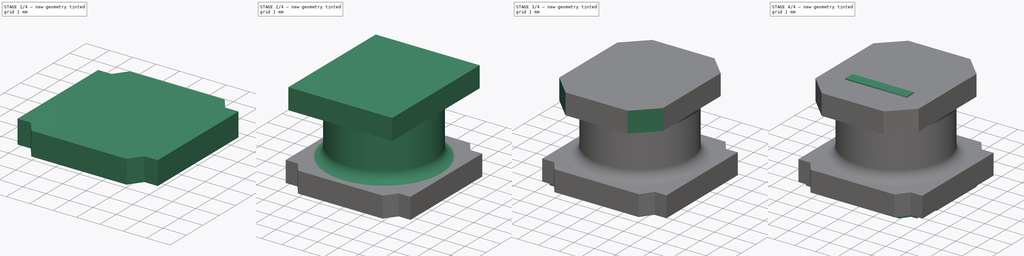
[diagram: build sequence overview — one tinted view per stage of 4, left to right]
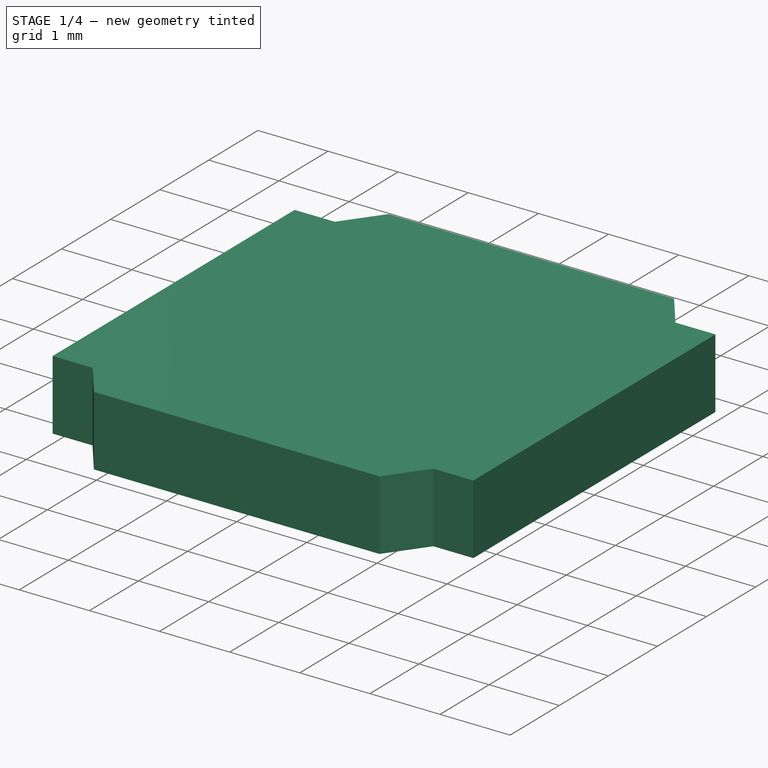
[diagram: stage 1 of 4 — iso view after this stage's code; geometry added in this stage tinted green]
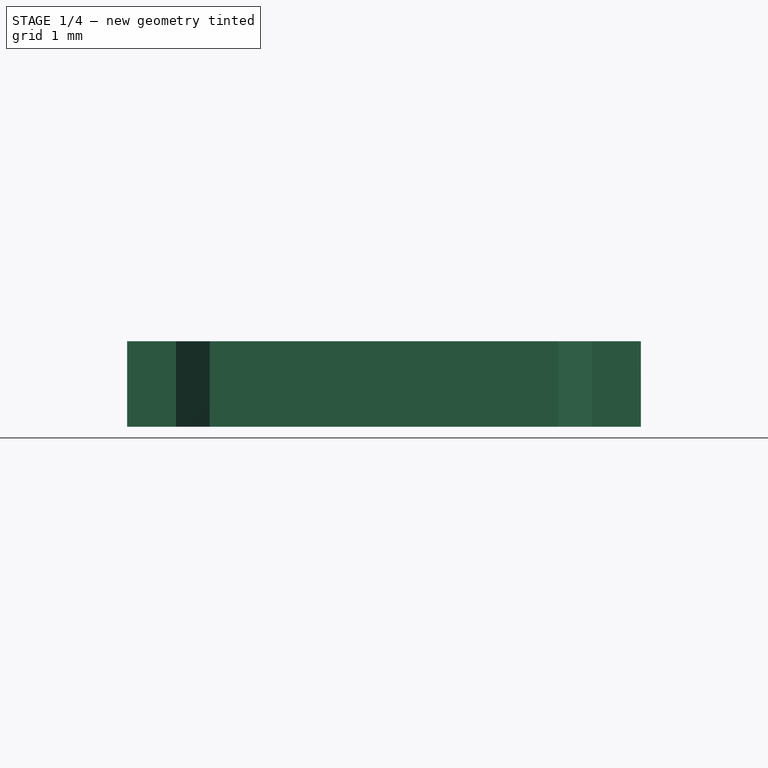
[diagram: stage 1 of 4 — front view after this stage's code; geometry added in this stage tinted green]
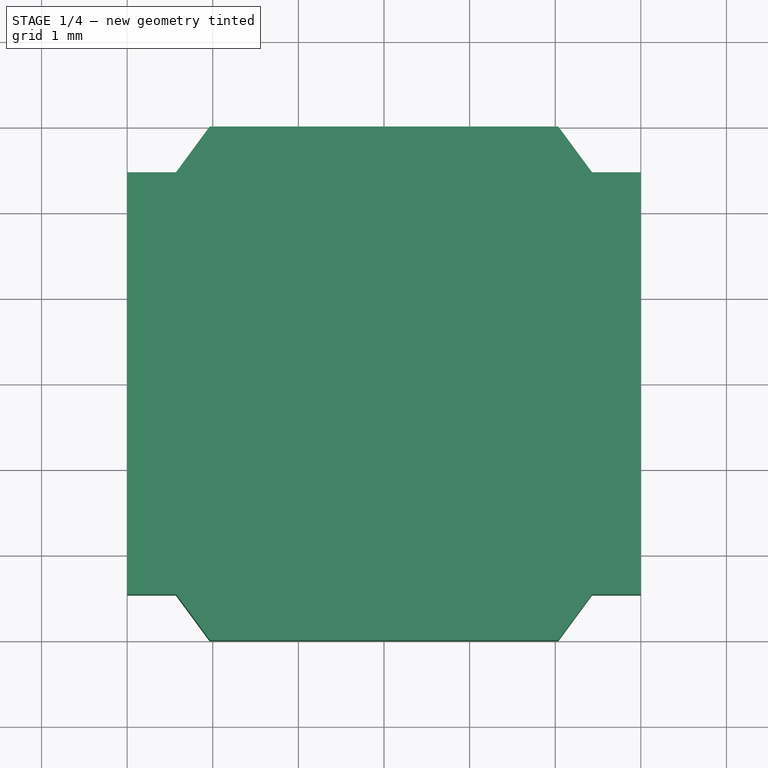
[diagram: stage 1 of 4 — top view after this stage's code; geometry added in this stage tinted green]
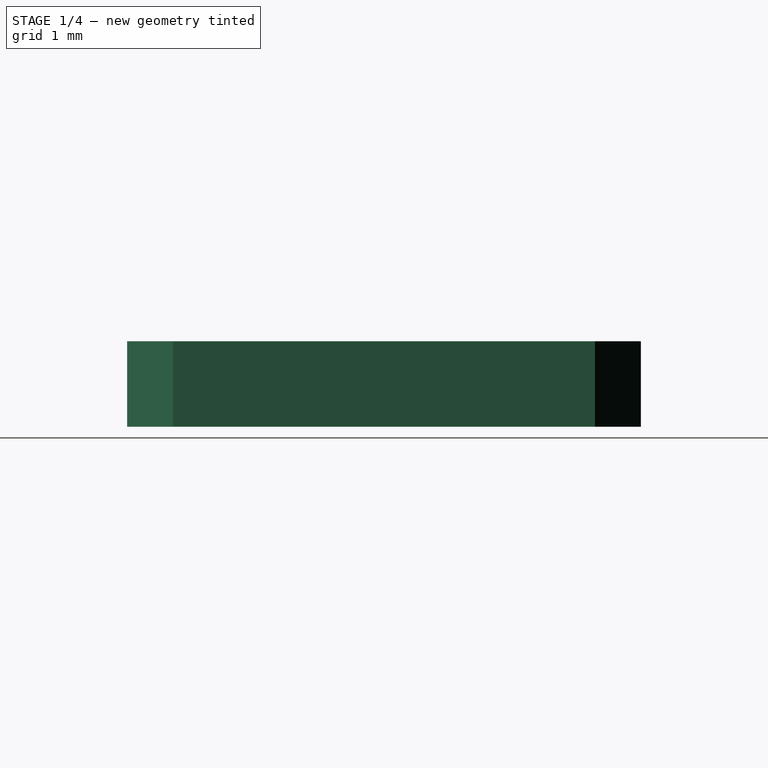
[diagram: stage 1 of 4 — right view after this stage's code; geometry added in this stage tinted green]
FCSTD DOCUMENT  (FreeCAD 0.18R4 (GitTag))
Label: NR6045
License: All rights reserved
LicenseURL: http://en.wikipedia.org/wiki/All_rights_reserved
objects: Sketcher::SketchObject×6, PartDesign::Pad×5, PartDesign::Fillet×2, PartDesign::Pocket×1, PartDesign::Chamfer×1, PartDesign::Mirrored×1, PartDesign::Body×1
note: 23 computed .brp shape members not serialized (recipe doc carries the construction recipe); baked Part::Feature solids carry a one-line shape summary decoded from their .brp

FEATURE [Sketcher::SketchObject] Sketch
  MapMode = 5
  Support = -> [XY_Plane]
  sketch-geometry (4):
    g0: LineSegment StartX=-3 StartY=3 StartZ=0 EndX=3 EndY=3 EndZ=0
    g1: LineSegment StartX=3 StartY=3 StartZ=0 EndX=3 EndY=-3 EndZ=0
    g2: LineSegment StartX=3 StartY=-3 StartZ=0 EndX=-3 EndY=-3 EndZ=0
    g3: LineSegment StartX=-3 StartY=-3 StartZ=0 EndX=-3 EndY=3 EndZ=0
  constraints (12):
    c: Coincident(g0,g1)
    c: Coincident(g1,g2)
    c: Coincident(g2,g3)
    c: Coincident(g3,g0)
    c: Horizontal(g0)
    c: Horizontal(g2)
    c: Vertical(g1)
    c: Vertical(g3)
    c: DistanceX(g0,g0) = 6
    c: DistanceY(g1,g1) = 6
    c: DistanceX(g-1,g1) = 3
    c: DistanceY(g-1,g0) = 3
FEATURE [PartDesign::Pad] Pad
  Length = 1
  Length2 = 100
  Profile = -> Sketch
  Type = 0
FEATURE [Sketcher::SketchObject] Sketch001
  ExternalGeometry = -> [Pad]
  MapMode = 5
  Placement = pos=(0,0,1) rot=(0,0,1;0rad)
  Support = -> [Pad]
  sketch-geometry (16):
    g0: LineSegment StartX=-3 StartY=3 StartZ=0 EndX=-3 EndY=2.46528 EndZ=0
    g1: LineSegment StartX=-3 StartY=2.46528 StartZ=0 EndX=-2.42964 EndY=2.46528 EndZ=0
    g2: LineSegment StartX=-2.42964 StartY=2.46528 StartZ=0 EndX=-2.03614 EndY=3 EndZ=0
    g3: LineSegment StartX=-2.03614 StartY=3 StartZ=0 EndX=-3 EndY=3 EndZ=0
    g4: LineSegment StartX=3 StartY=3 StartZ=0 EndX=3 EndY=2.46528 EndZ=0
    g5: LineSegment StartX=3 StartY=2.46528 StartZ=0 EndX=2.42964 EndY=2.46528 EndZ=0
    g6: LineSegment StartX=2.42964 StartY=2.46528 StartZ=0 EndX=2.03614 EndY=3 EndZ=0
    g7: LineSegment StartX=2.03614 StartY=3 StartZ=0 EndX=3 EndY=3 EndZ=0
    g8: LineSegment StartX=-3 StartY=-3 StartZ=0 EndX=-3 EndY=-2.46528 EndZ=0
    g9: LineSegment StartX=-3 StartY=-2.46528 StartZ=0 EndX=-2.42964 EndY=-2.46528 EndZ=0
    g10: LineSegment StartX=-2.42964 StartY=-2.46528 StartZ=0 EndX=-2.03614 EndY=-3 EndZ=0
    g11: LineSegment StartX=-2.03614 StartY=-3 StartZ=0 EndX=-3 EndY=-3 EndZ=0
    g12: LineSegment StartX=3 StartY=-3 StartZ=0 EndX=3 EndY=-2.46528 EndZ=0
    g13: LineSegment StartX=3 StartY=-2.46528 StartZ=0 EndX=2.42964 EndY=-2.46528 EndZ=0
    g14: LineSegment StartX=2.42964 StartY=-2.46528 StartZ=0 EndX=2.03614 EndY=-3 EndZ=0
    g15: LineSegment StartX=2.03614 StartY=-3 StartZ=0 EndX=3 EndY=-3 EndZ=0
  constraints (23):
    c: Coincident(g0,g1)
    c: Coincident(g1,g2)
    c: Coincident(g2,g3)
    c: Coincident(g3,g0)
    c: Coincident(g0,g-4)
    c: PointOnObject(g0,g-4)
    c: PointOnObject(g2,g-3)
    c: Parallel(g1,g3)
    c: Coincident(g4,g5)
    c: Coincident(g5,g6)
    c: Coincident(g6,g7)
    c: Coincident(g7,g4)
    c: Parallel(g5,g7)
    c: Coincident(g8,g9)
    c: Coincident(g9,g10)
    c: Coincident(g10,g11)
    c: Coincident(g11,g8)
    c: Parallel(g9,g11)
    c: Coincident(g12,g13)
    c: Coincident(g13,g14)
    c: Coincident(g14,g15)
    c: Coincident(g15,g12)
    c: Parallel(g13,g15)
FEATURE [PartDesign::Pocket] Pocket
  BaseFeature = -> Pad
  Length = 1
  Length2 = 100
  Profile = -> Sketch001
  Type = 0
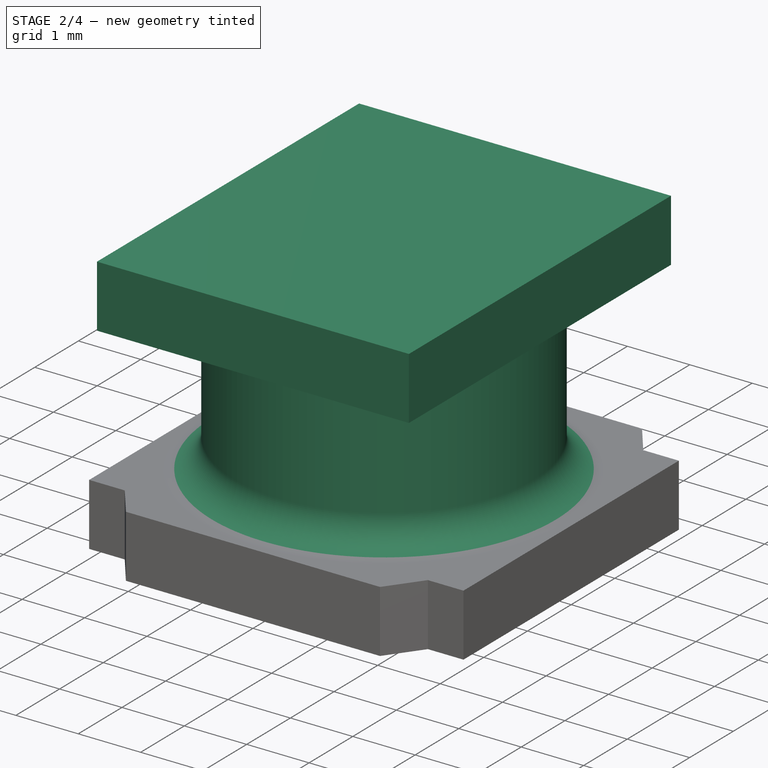
[diagram: stage 2 of 4 — iso view after this stage's code; geometry added in this stage tinted green]
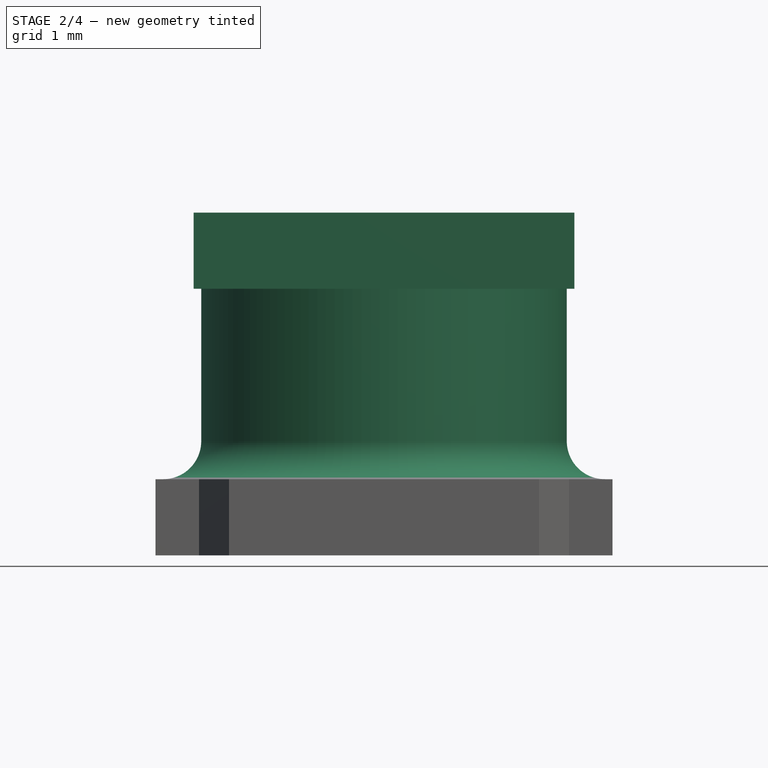
[diagram: stage 2 of 4 — front view after this stage's code; geometry added in this stage tinted green]
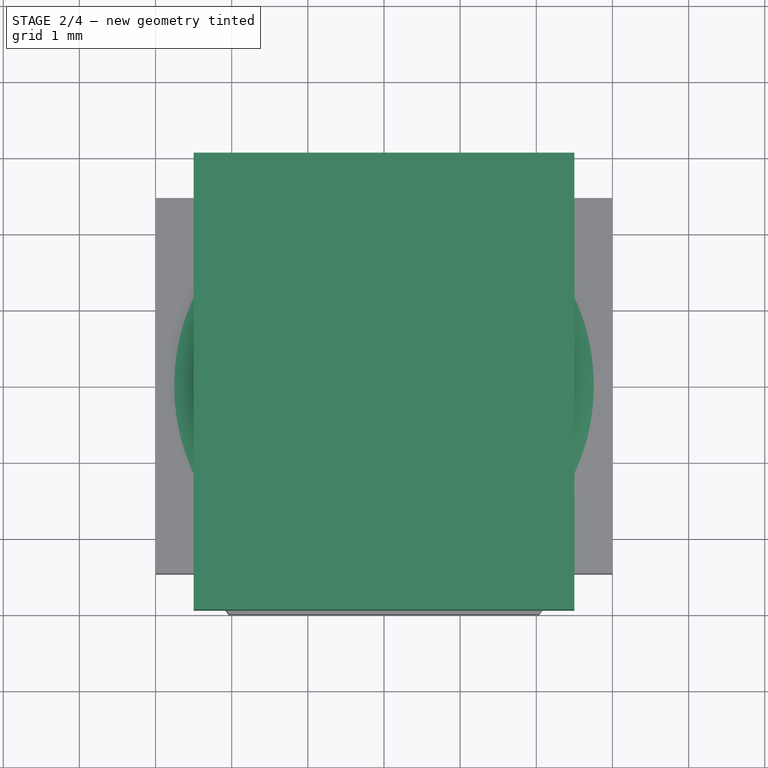
[diagram: stage 2 of 4 — top view after this stage's code; geometry added in this stage tinted green]
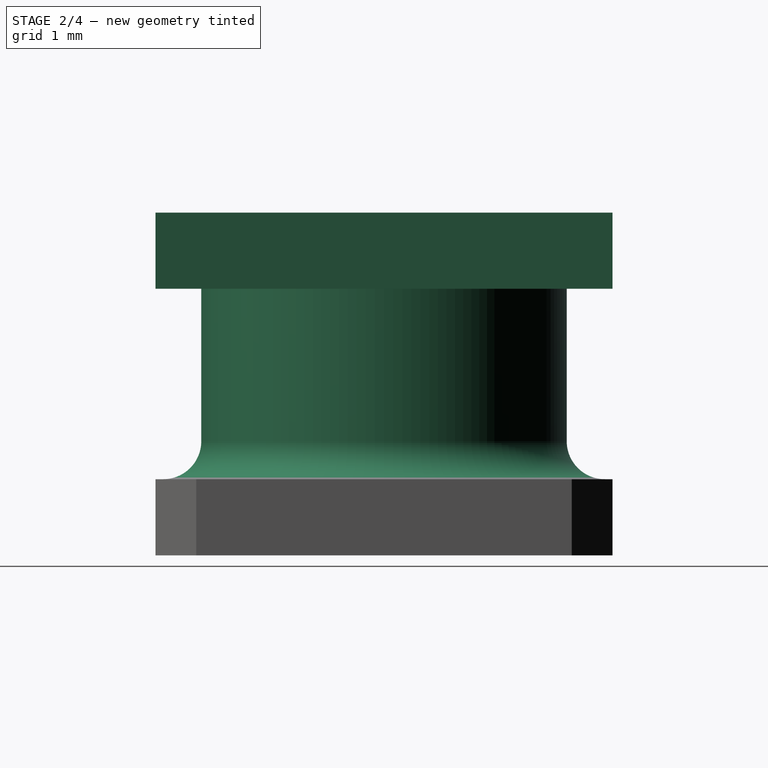
[diagram: stage 2 of 4 — right view after this stage's code; geometry added in this stage tinted green]
FEATURE [Sketcher::SketchObject] Sketch002
  MapMode = 5
  Placement = pos=(0,0,1) rot=(0,0,1;0rad)
  Support = -> [Pocket]
  sketch-geometry (1):
    g0: Circle CenterX=0 CenterY=0 CenterZ=0 NormalX=0 NormalY=0 NormalZ=1 AngleXU=0 Radius=2.4
  constraints (2):
    c: Radius(g0) = 2.4
    c: Coincident(g0,g-1)
FEATURE [PartDesign::Pad] Pad001
  BaseFeature = -> Pocket
  Length = 2.5
  Length2 = 100
  Profile = -> Sketch002
  Type = 0
FEATURE [PartDesign::Fillet] Fillet
  Base = -> Pad001 [Edge28]
  BaseFeature = -> Pad001
  Radius = 0.5
FEATURE [Sketcher::SketchObject] Sketch003
  MapMode = 5
  Placement = pos=(0,0,3.5) rot=(0,0,1;0rad)
  Support = -> [Fillet]
  sketch-geometry (4):
    g0: LineSegment StartX=-2.5 StartY=3 StartZ=0 EndX=2.5 EndY=3 EndZ=0
    g1: LineSegment StartX=2.5 StartY=3 StartZ=0 EndX=2.5 EndY=-3 EndZ=0
    g2: LineSegment StartX=2.5 StartY=-3 StartZ=0 EndX=-2.5 EndY=-3 EndZ=0
    g3: LineSegment StartX=-2.5 StartY=-3 StartZ=0 EndX=-2.5 EndY=3 EndZ=0
  constraints (12):
    c: Coincident(g0,g1)
    c: Coincident(g1,g2)
    c: Coincident(g2,g3)
    c: Coincident(g3,g0)
    c: Horizontal(g0)
    c: Horizontal(g2)
    c: Vertical(g1)
    c: Vertical(g3)
    c: DistanceX(g2,g2) = 5
    c: DistanceY(g1,g1) = 6
    c: DistanceX(g2,g-1) = 2.5
    c: DistanceY(g-1,g0) = 3
FEATURE [PartDesign::Pad] Pad002
  BaseFeature = -> Fillet
  Length = 1
  Length2 = 100
  Profile = -> Sketch003
  Type = 0
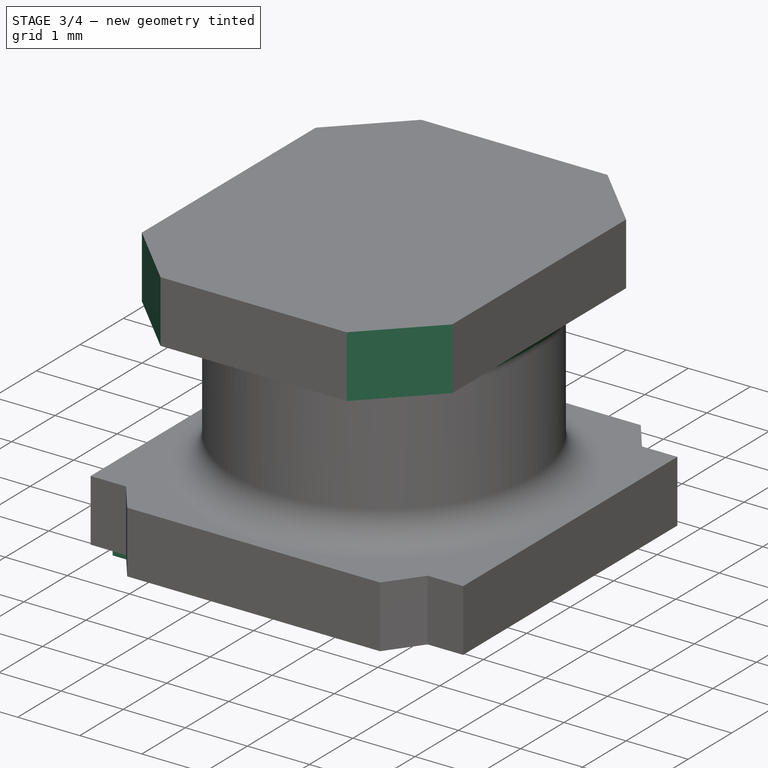
[diagram: stage 3 of 4 — iso view after this stage's code; geometry added in this stage tinted green]
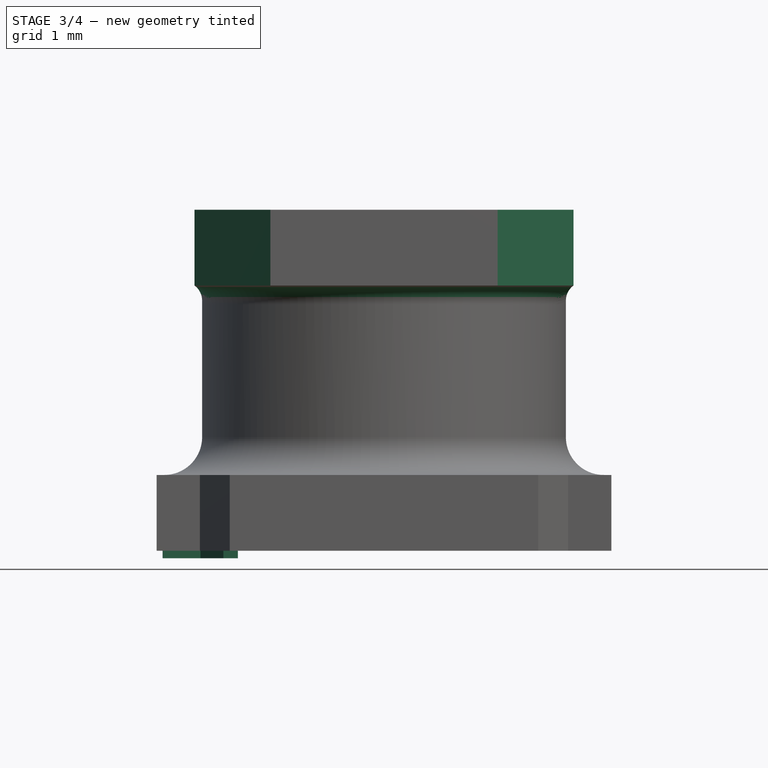
[diagram: stage 3 of 4 — front view after this stage's code; geometry added in this stage tinted green]
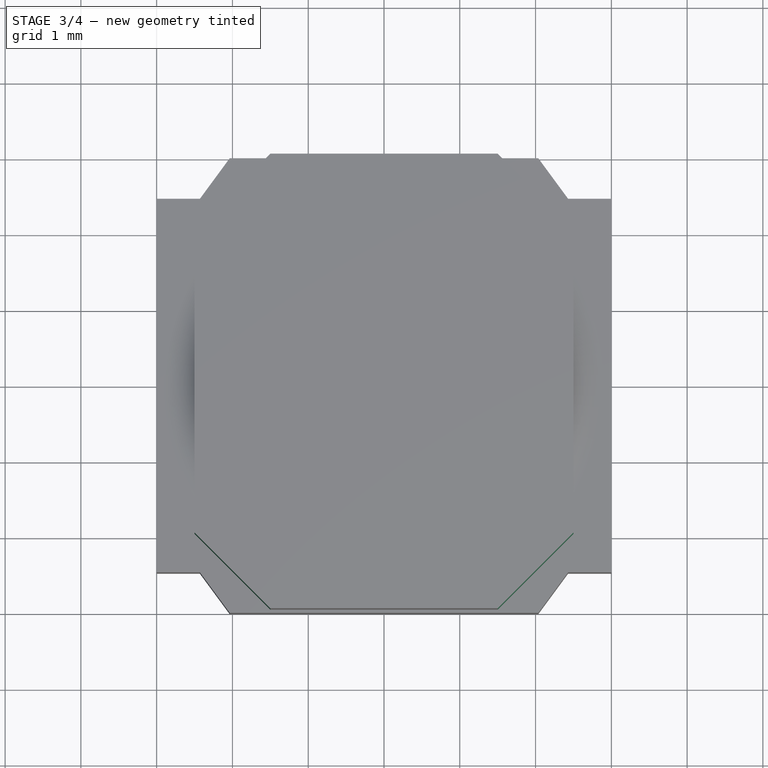
[diagram: stage 3 of 4 — top view after this stage's code; geometry added in this stage tinted green]
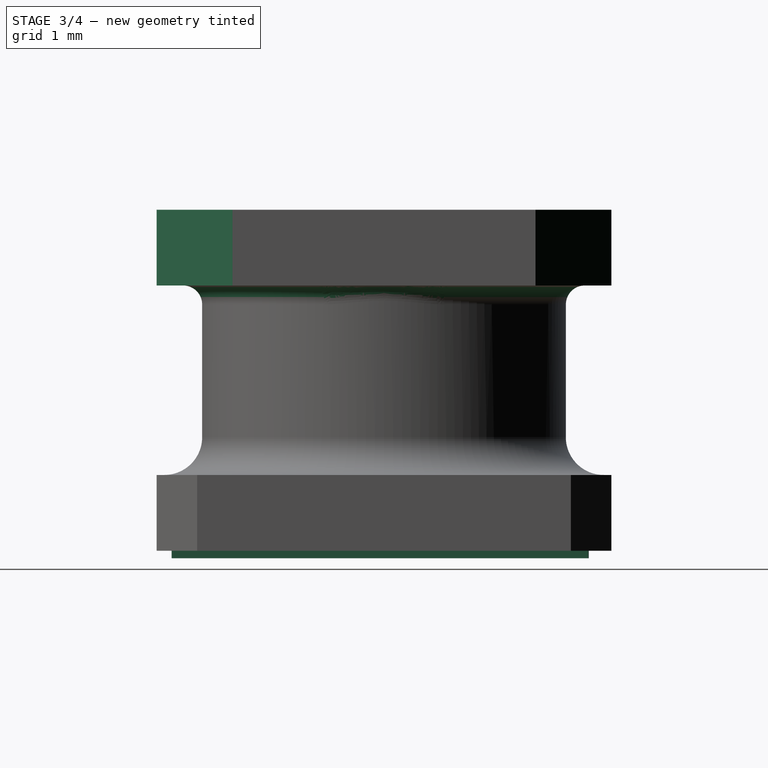
[diagram: stage 3 of 4 — right view after this stage's code; geometry added in this stage tinted green]
FEATURE [PartDesign::Chamfer] Chamfer
  Base = -> Pad002 [Edge5,Edge8,Edge1,Edge2]
  BaseFeature = -> Pad002
  Size = 1
FEATURE [PartDesign::Fillet] Fillet001
  Base = -> Chamfer [Edge12]
  BaseFeature = -> Chamfer
  Radius = 0.25
FEATURE [Sketcher::SketchObject] Sketch004
  MapMode = 5
  Placement = pos=(0,0,0) rot=(1,0,0;3.14159rad)
  Support = -> [Fillet001]
  sketch-geometry (12):
    g0: LineSegment StartX=-2.91424 StartY=1.37516 StartZ=0 EndX=-2.92169 EndY=-1.41402 EndZ=0
    g1: LineSegment StartX=-2.92169 StartY=-1.41402 StartZ=0 EndX=-2.64944 EndY=-1.40667 EndZ=0
    g2: LineSegment StartX=-2.64944 StartY=-1.40667 StartZ=0 EndX=-2.6568 EndY=-2.39999 EndZ=0
    g3: LineSegment StartX=-2.6568 StartY=-2.39999 StartZ=0 EndX=-2.36984 EndY=-2.40735 EndZ=0
    g4: LineSegment StartX=-2.36984 StartY=-2.40735 StartZ=0 EndX=-2.17853 EndY=-2.70167 EndZ=0
    g5: LineSegment StartX=-2.17853 StartY=-2.70167 StartZ=0 EndX=-1.92836 EndY=-2.69431 EndZ=0
    g6: LineSegment StartX=-1.92836 StartY=-2.69431 StartZ=0 EndX=-1.92827 EndY=2.80261 EndZ=0
    g7: LineSegment StartX=-1.92827 StartY=2.80261 StartZ=0 EndX=-2.11958 EndY=2.80261 EndZ=0
    g8: LineSegment StartX=-2.11958 StartY=2.80261 StartZ=0 EndX=-2.42125 EndY=2.39792 EndZ=0
    g9: LineSegment StartX=-2.42125 StartY=2.39792 StartZ=0 EndX=-2.6935 EndY=2.39792 EndZ=0
    g10: LineSegment StartX=-2.6935 StartY=2.39792 StartZ=0 EndX=-2.6935 EndY=1.36781 EndZ=0
    g11: LineSegment StartX=-2.6935 StartY=1.36781 StartZ=0 EndX=-2.91424 EndY=1.37516 EndZ=0
  constraints (12):
    c: Coincident(g0,g1)
    c: Coincident(g1,g2)
    c: Coincident(g2,g3)
    c: Coincident(g3,g4)
    c: Coincident(g4,g5)
    c: Coincident(g5,g6)
    c: Coincident(g6,g7)
    c: Coincident(g7,g8)
    c: Coincident(g8,g9)
    c: Coincident(g9,g10)
    c: Coincident(g10,g11)
    c: Coincident(g11,g0)
FEATURE [PartDesign::Pad] Pad003
  BaseFeature = -> Fillet001
  Length = 0.1
  Length2 = 100
  Profile = -> Sketch004
  Type = 0
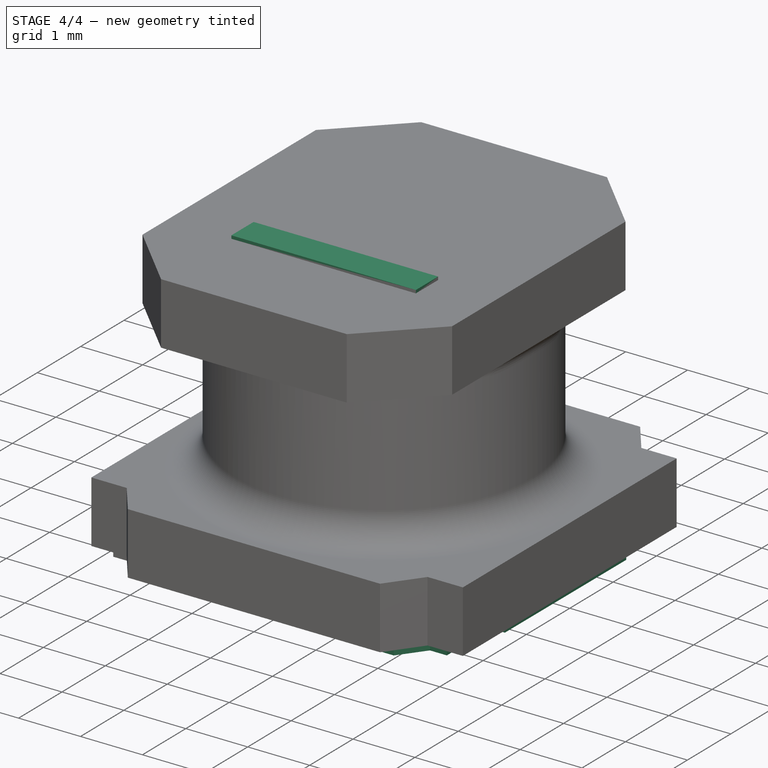
[diagram: stage 4 of 4 — iso view after this stage's code; geometry added in this stage tinted green]
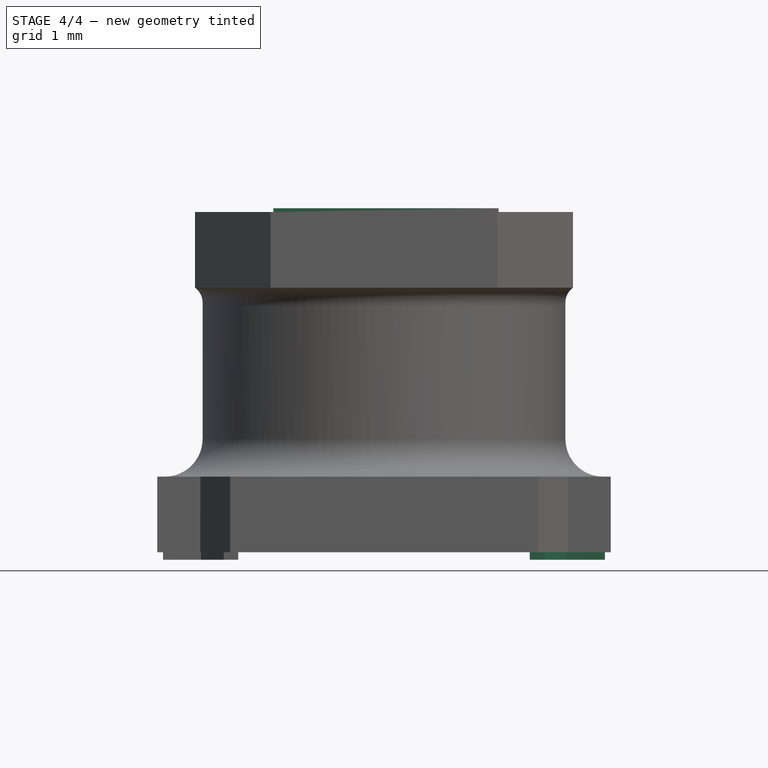
[diagram: stage 4 of 4 — front view after this stage's code; geometry added in this stage tinted green]
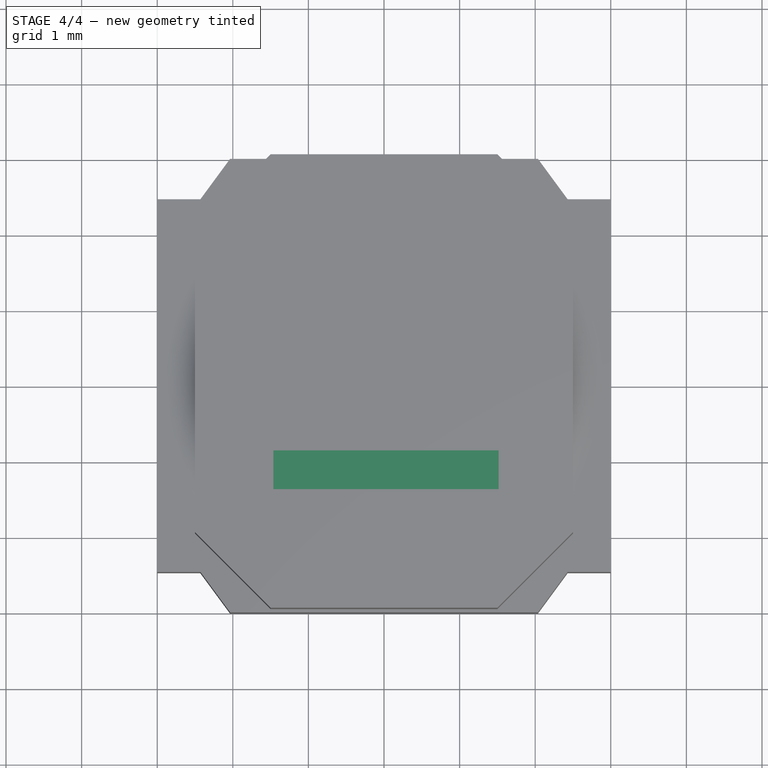
[diagram: stage 4 of 4 — top view after this stage's code; geometry added in this stage tinted green]
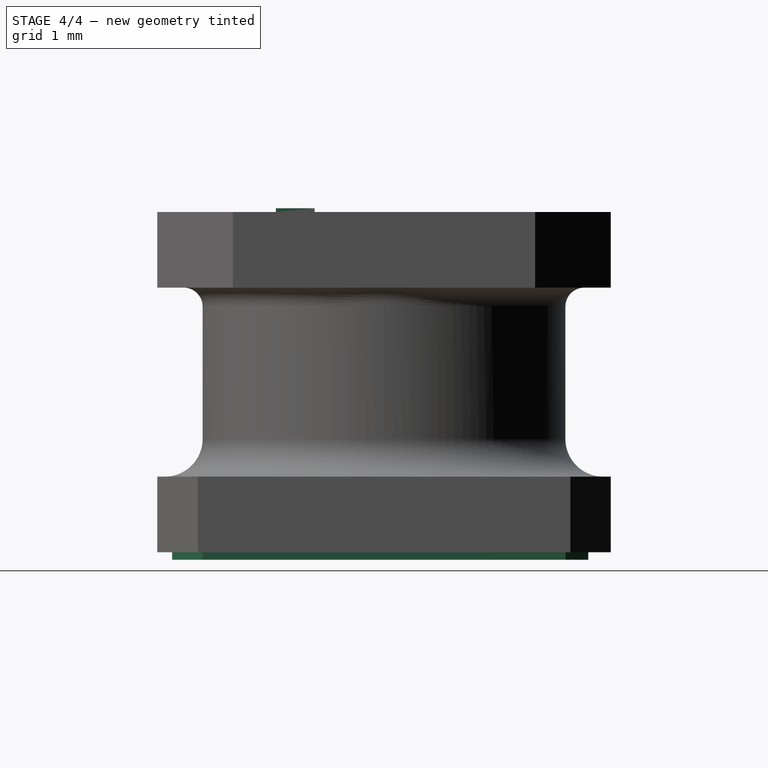
[diagram: stage 4 of 4 — right view after this stage's code; geometry added in this stage tinted green]
FEATURE [PartDesign::Mirrored] Mirrored
  BaseFeature = -> Pad003
  MirrorPlane = -> YZ_Plane
  Originals = -> [Pad003]
FEATURE [Sketcher::SketchObject] Sketch005
  MapMode = 5
  Placement = pos=(0,0,4.5) rot=(0,0,1;0rad)
  Support = -> [Mirrored]
  sketch-geometry (4):
    g0: LineSegment StartX=-1.46329 StartY=-0.918036 StartZ=0 EndX=1.51709 EndY=-0.918036 EndZ=0
    g1: LineSegment StartX=1.51709 StartY=-0.918036 StartZ=0 EndX=1.51709 EndY=-1.43105 EndZ=0
    g2: LineSegment StartX=1.51709 StartY=-1.43105 StartZ=0 EndX=-1.46329 EndY=-1.43105 EndZ=0
    g3: LineSegment StartX=-1.46329 StartY=-1.43105 StartZ=0 EndX=-1.46329 EndY=-0.918036 EndZ=0
  constraints (8):
    c: Coincident(g0,g1)
    c: Coincident(g1,g2)
    c: Coincident(g2,g3)
    c: Coincident(g3,g0)
    c: Horizontal(g0)
    c: Horizontal(g2)
    c: Vertical(g1)
    c: Vertical(g3)
FEATURE [PartDesign::Pad] Pad004
  BaseFeature = -> Mirrored
  Length = 0.05
  Length2 = 100
  Profile = -> Sketch005
  Type = 0
FEATURE [PartDesign::Body] Body
  Group = -> [Sketch,Pad,Sketch001,Pocket,Sketch002,Pad001,Fillet,Sketch003,Pad002,Chamfer,Fillet001,Sketch004,Pad003,Mirrored,Sketch005,Pad004]
  Origin = -> Origin
  Tip = -> Pad004
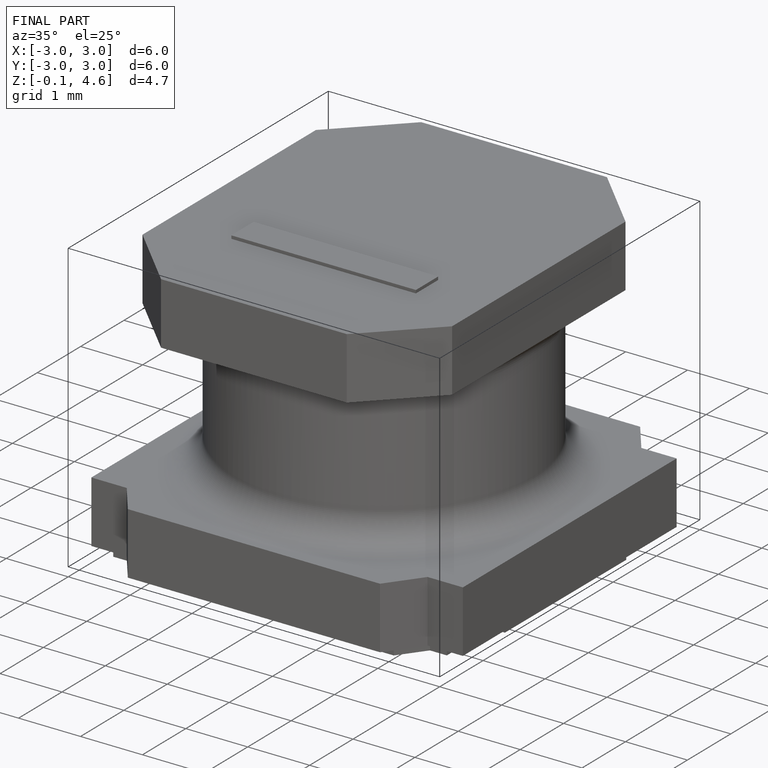
[diagram: finished part — iso view with bounding-box wireframe]
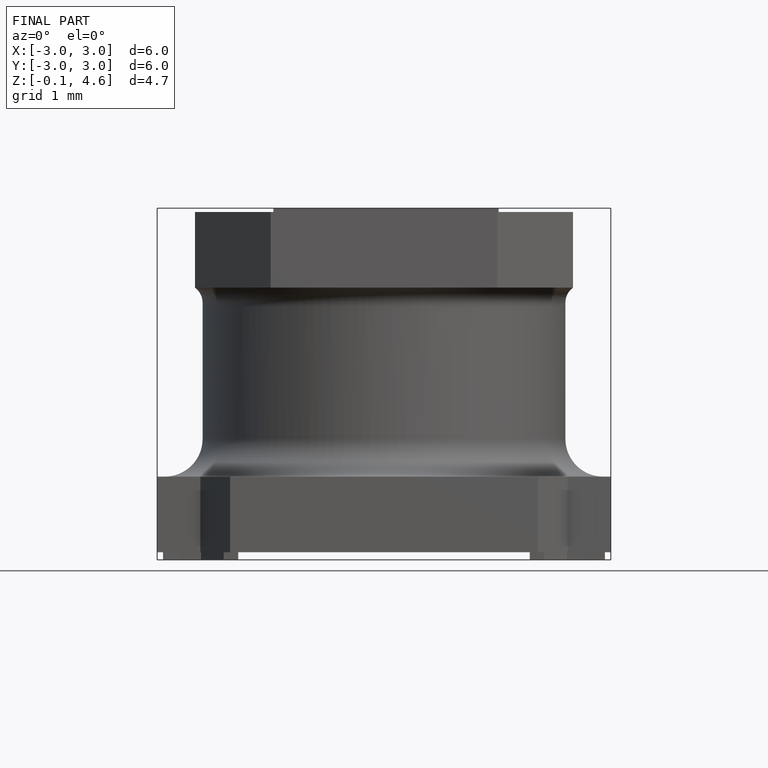
[diagram: finished part — front view with bounding-box wireframe]
